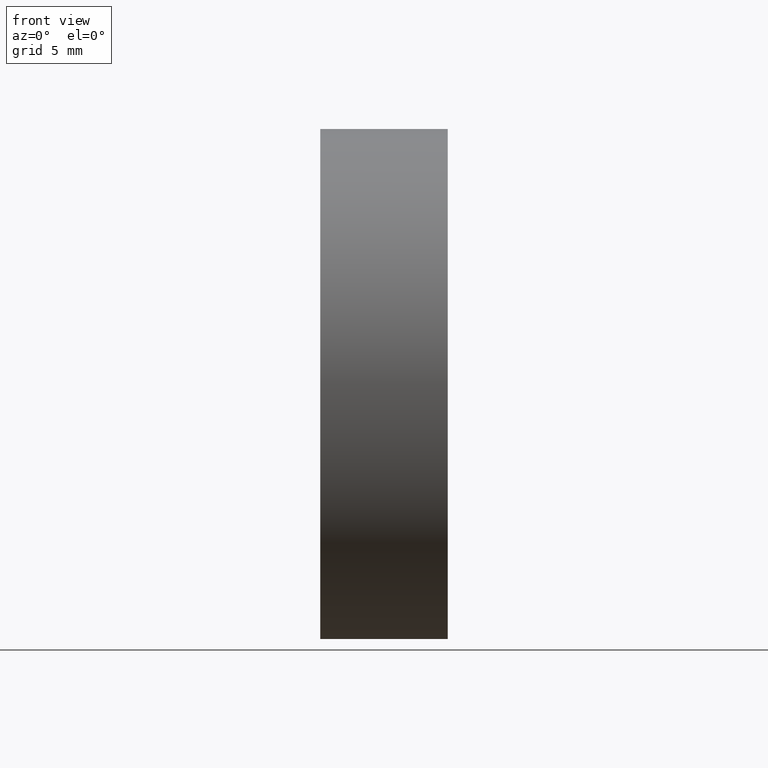
[diagram: clean part render]
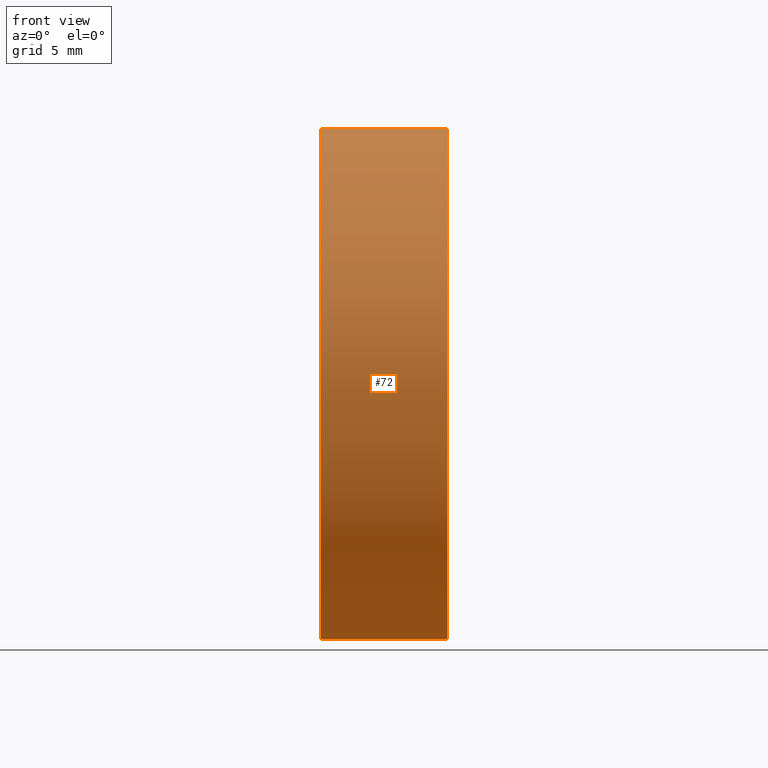
[diagram: same view with one face highlighted and labeled with its STEP entity id]
A machine part, front view. The second image highlights one B-rep face of the part: STEP entity #72.
In plain terms, the highlighted cylindrical surface (partial cylindrical patch) has radius 12.7 mm, axis along (-1, -0, -0).
Its self-contained STEP definition (entity closure, byte-faithful):
#1 = CARTESIAN_POINT ( 'NONE',  ( 0.0000000000000000000, 0.0000000000000000000, 0.0000000000000000000 ) ) ;
#7 = CARTESIAN_POINT ( 'NONE',  ( 0.0000000000000000000, 0.0000000000000000000, 0.0000000000000000000 ) ) ;
#8 = CARTESIAN_POINT ( 'NONE',  ( 0.0000000000000000000, 1.555301434917140400E-015, -12.70000000000001500 ) ) ;
#11 = DIRECTION ( 'NONE',  ( -1.000000000000000000, -0.0000000000000000000, -0.0000000000000000000 ) ) ;
#13 = EDGE_LOOP ( 'NONE', ( #129, #112, #145, #74 ) ) ;
#16 = CARTESIAN_POINT ( 'NONE',  ( 0.0000000000000000000, 0.0000000000000000000, 12.70000000000001500 ) ) ;
#23 = DIRECTION ( 'NONE',  ( 0.0000000000000000000, 0.0000000000000000000, 1.000000000000000000 ) ) ;
#24 = DIRECTION ( 'NONE',  ( 0.0000000000000000000, 0.0000000000000000000, 1.000000000000000000 ) ) ;
#25 = LINE ( 'NONE', #8, #50 ) ;
#30 = EDGE_CURVE ( 'NONE', #104, #76, #25, .T. ) ;
#36 = VECTOR ( 'NONE', #136, 1000.000000000000000 ) ;
#38 = CARTESIAN_POINT ( 'NONE',  ( 6.349789082345805200, 1.555301434917142000E-015, -12.70000000000002800 ) ) ;
#43 = EDGE_CURVE ( 'NONE', #104, #155, #79, .T. ) ;
#49 = DIRECTION ( 'NONE',  ( -1.000000000000000000, -0.0000000000000000000, -0.0000000000000000000 ) ) ;
#50 = VECTOR ( 'NONE', #71, 1000.000000000000000 ) ;
#57 = DIRECTION ( 'NONE',  ( -1.000000000000000000, -0.0000000000000000000, -0.0000000000000000000 ) ) ;
#58 = LINE ( 'NONE', #16, #36 ) ;
#61 = VERTEX_POINT ( 'NONE', #97 ) ;
#66 = AXIS2_PLACEMENT_3D ( 'NONE', #1, #57, #109 ) ;
#71 = DIRECTION ( 'NONE',  ( -1.000000000000000000, -0.0000000000000000000, -0.0000000000000000000 ) ) ;
#72 = ADVANCED_FACE ( 'NONE', ( #160 ), #91, .T. ) ;
#74 = ORIENTED_EDGE ( 'NONE', *, *, #148, .F. ) ;
#76 = VERTEX_POINT ( 'NONE', #143 ) ;
#79 = CIRCLE ( 'NONE', #98, 12.70000000000003100 ) ;
#91 = CYLINDRICAL_SURFACE ( 'NONE', #66, 12.70000000000001500 ) ;
#97 = CARTESIAN_POINT ( 'NONE',  ( 0.0000000000000000000, 0.0000000000000000000, 12.69999999999999900 ) ) ;
#98 = AXIS2_PLACEMENT_3D ( 'NONE', #122, #49, #24 ) ;
#104 = VERTEX_POINT ( 'NONE', #38 ) ;
#109 = DIRECTION ( 'NONE',  ( 0.0000000000000000000, 0.0000000000000000000, 1.000000000000000000 ) ) ;
#112 = ORIENTED_EDGE ( 'NONE', *, *, #43, .T. ) ;
#113 = AXIS2_PLACEMENT_3D ( 'NONE', #7, #11, #23 ) ;
#122 = CARTESIAN_POINT ( 'NONE',  ( 6.349789082345805200, 0.0000000000000000000, 0.0000000000000000000 ) ) ;
#123 = EDGE_CURVE ( 'NONE', #155, #61, #58, .T. ) ;
#129 = ORIENTED_EDGE ( 'NONE', *, *, #30, .F. ) ;
#136 = DIRECTION ( 'NONE',  ( -1.000000000000000000, -0.0000000000000000000, -0.0000000000000000000 ) ) ;
#143 = CARTESIAN_POINT ( 'NONE',  ( 0.0000000000000000000, 1.555301434917139600E-015, -12.69999999999999900 ) ) ;
#145 = ORIENTED_EDGE ( 'NONE', *, *, #123, .T. ) ;
#148 = EDGE_CURVE ( 'NONE', #76, #61, #156, .T. ) ;
#155 = VERTEX_POINT ( 'NONE', #161 ) ;
#156 = CIRCLE ( 'NONE', #113, 12.69999999999999900 ) ;
#160 = FACE_OUTER_BOUND ( 'NONE', #13, .T. ) ;
#161 = CARTESIAN_POINT ( 'NONE',  ( 6.349789082345805200, 0.0000000000000000000, 12.70000000000002800 ) ) ;